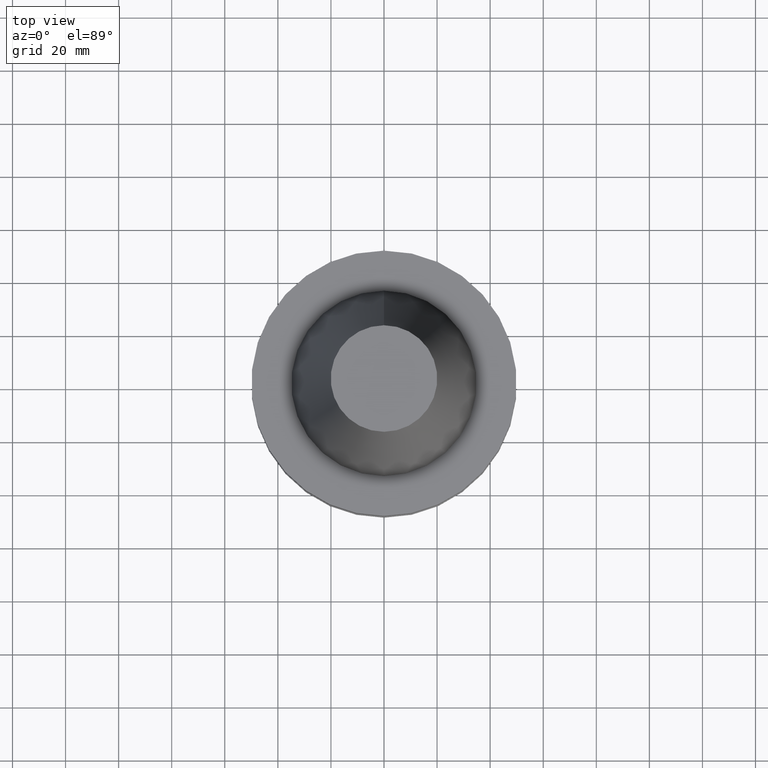
[diagram: clean part render]
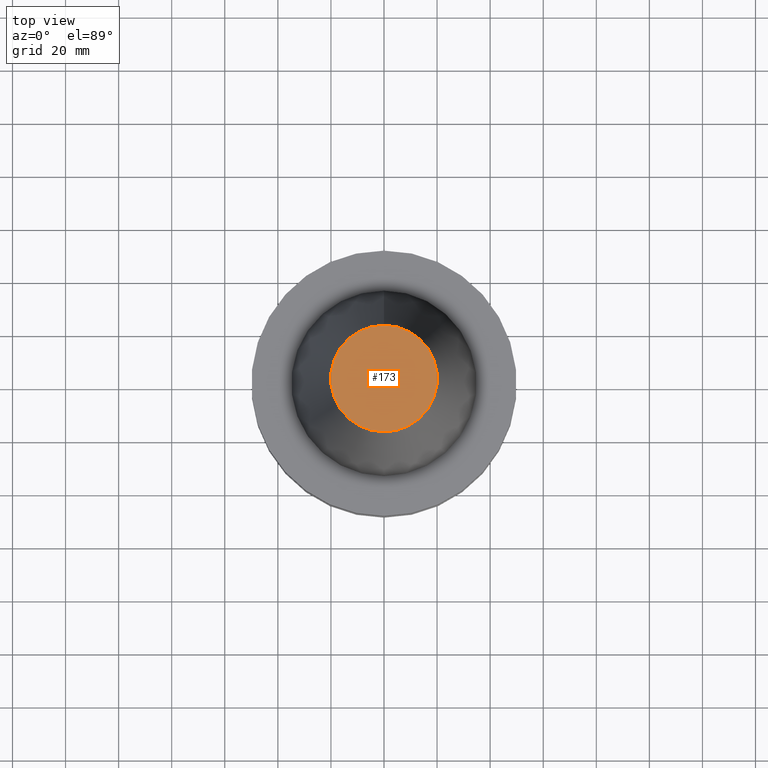
[diagram: same view with one face highlighted and labeled with its STEP entity id]
A machine part, top view. The second image highlights one B-rep face of the part: STEP entity #173.
In plain terms, the highlighted planar face has unit normal (-0, -0, 1).
Its self-contained STEP definition (entity closure, byte-faithful):
#94=EDGE_CURVE('Unnamed[1]',#230,#230,#231,.T.);
#173=ADVANCED_FACE('Unnamed[1]',(#351),#352,.T.);
#230=VERTEX_POINT('',#412);
#231=CIRCLE('',#413,20.0791666651884);
#351=FACE_OUTER_BOUND('',#563,.T.);
#352=PLANE('',#564);
#412=CARTESIAN_POINT('',(-6.23345220766003E-015,20.0791666651884,101.8));
#413=AXIS2_PLACEMENT_3D('',#611,#612,#613);
#563=EDGE_LOOP('',(#745));
#564=AXIS2_PLACEMENT_3D('',#746,#747,#748);
#611=CARTESIAN_POINT('',(-6.23345220766003E-015,1.30258929046129E-014,101.8));
#612=DIRECTION('',(-6.12323399573677E-017,-1.52619998477336E-017,1.0));
#613=DIRECTION('',(-5.76168069387474E-033,1.0,1.52619998477336E-017));
#745=ORIENTED_EDGE('',*,*,#94,.T.);
#746=CARTESIAN_POINT('',(-6.23345220766003E-015,10.0395833325942,101.8));
#747=DIRECTION('',(-6.12323399573677E-017,-1.22464679914735E-016,1.0));
#748=DIRECTION('',(-1.23259516440783E-032,1.0,1.22464679914735E-016));